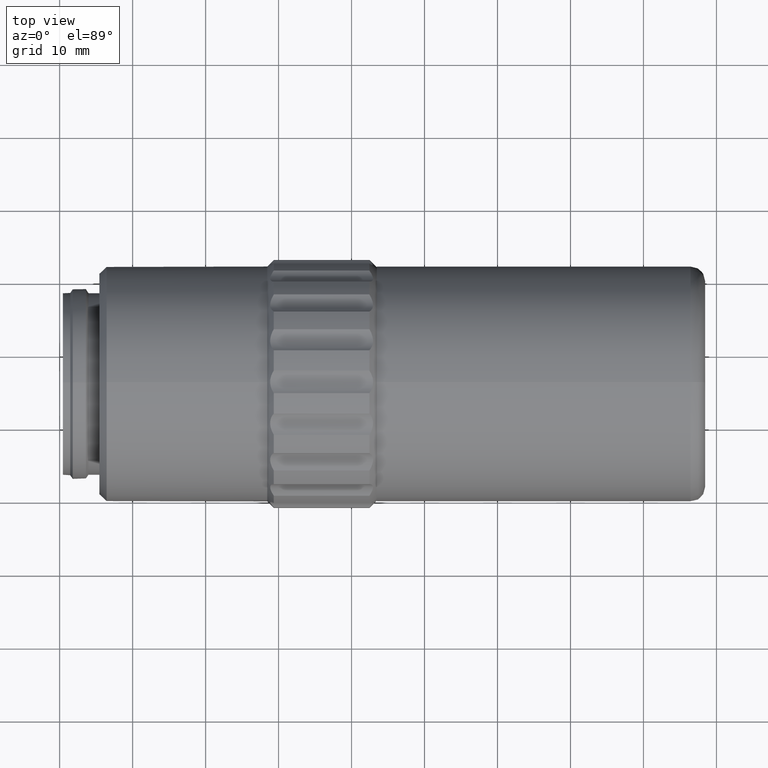
[diagram: clean part render]
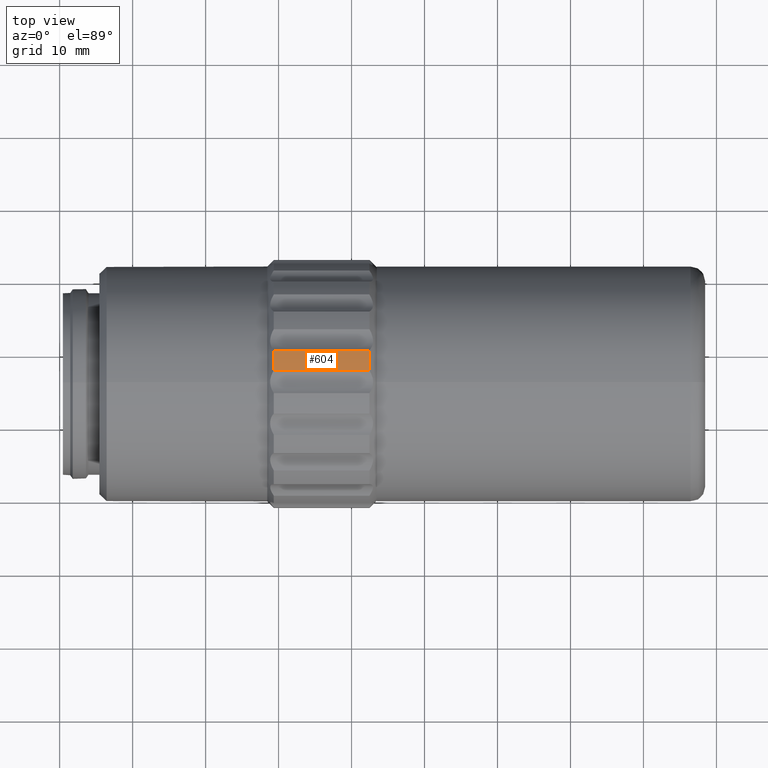
[diagram: same view with one face highlighted and labeled with its STEP entity id]
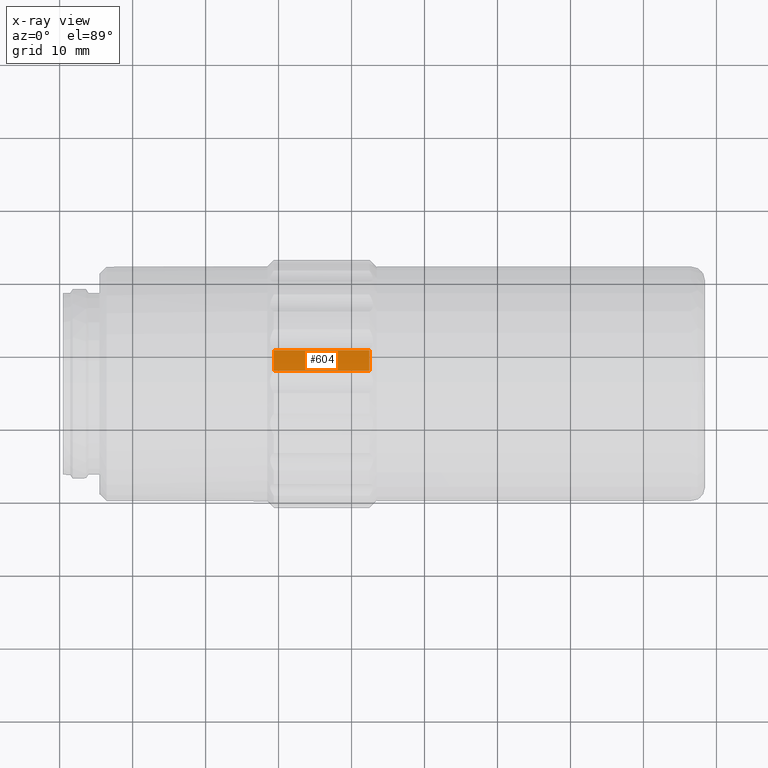
[diagram: x-ray of the same camera — body ghosted, the highlighted face saturated]
A machine part, top view. The second image highlights one B-rep face of the part: STEP entity #604.
The next image is the same camera in x-ray: the body ghosted, the highlighted face saturated — about 0% of this face is hidden behind the body in this view.
In plain terms, the highlighted cylindrical surface (partial cylindrical patch) has radius 17 mm, axis along (-1, 0, 0).
Its self-contained STEP definition (entity closure, byte-faithful):
#25 = EDGE_CURVE ( 'NONE', #606, #139, #341, .T. ) ;
#44 = CYLINDRICAL_SURFACE ( 'NONE', #2052, 17.00000000000000000 ) ;
#55 = DIRECTION ( 'NONE',  ( -1.000000000000000000, 0.000000000000000000, 0.000000000000000000 ) ) ;
#135 = AXIS2_PLACEMENT_3D ( 'NONE', #1088, #1962, #1625 ) ;
#139 = VERTEX_POINT ( 'NONE', #776 ) ;
#241 = EDGE_CURVE ( 'NONE', #251, #542, #1079, .T. ) ;
#251 = VERTEX_POINT ( 'NONE', #1067 ) ;
#341 = LINE ( 'NONE', #367, #1721 ) ;
#367 = CARTESIAN_POINT ( 'NONE',  ( 42.83704000000000178, 47.56772114077769942, 16.92948717948717530 ) ) ;
#391 = DIRECTION ( 'NONE',  ( 0.000000000000000000, 0.000000000000000000, 1.000000000000000000 ) ) ;
#507 = EDGE_CURVE ( 'NONE', #542, #606, #1469, .T. ) ;
#522 = DIRECTION ( 'NONE',  ( 0.000000000000000000, -1.591863895602246436E-14, 1.000000000000000000 ) ) ;
#532 = CARTESIAN_POINT ( 'NONE',  ( 36.23704000000000036, 50.35770948083630572, 16.43753695927281555 ) ) ;
#542 = VERTEX_POINT ( 'NONE', #532 ) ;
#604 = ADVANCED_FACE ( 'NONE', ( #2114 ), #44, .T. ) ;
#606 = VERTEX_POINT ( 'NONE', #1769 ) ;
#687 = VECTOR ( 'NONE', #55, 1000.000000000000000 ) ;
#776 = CARTESIAN_POINT ( 'NONE',  ( 49.33704000000000178, 47.56772114077768521, 16.92948717948718240 ) ) ;
#816 = ORIENTED_EDGE ( 'NONE', *, *, #1461, .F. ) ;
#916 = CARTESIAN_POINT ( 'NONE',  ( 42.83704000000000178, 50.35770948083630572, 16.43753695927281910 ) ) ;
#1067 = CARTESIAN_POINT ( 'NONE',  ( 49.33704000000000889, 50.35770948083630572, 16.43753695927281200 ) ) ;
#1079 = LINE ( 'NONE', #916, #687 ) ;
#1088 = CARTESIAN_POINT ( 'NONE',  ( 49.33704000000001599, 46.02096199999999726, 0.000000000000000000 ) ) ;
#1316 = CIRCLE ( 'NONE', #135, 16.99999999999998579 ) ;
#1370 = CARTESIAN_POINT ( 'NONE',  ( 36.23704000000000036, 46.02096199999999726, 0.000000000000000000 ) ) ;
#1411 = CARTESIAN_POINT ( 'NONE',  ( 42.83704000000000178, 46.02096199999999726, 0.000000000000000000 ) ) ;
#1461 = EDGE_CURVE ( 'NONE', #251, #139, #1316, .T. ) ;
#1465 = DIRECTION ( 'NONE',  ( -1.000000000000000000, 0.000000000000000000, 0.000000000000000000 ) ) ;
#1469 = CIRCLE ( 'NONE', #1723, 17.00000000000000000 ) ;
#1518 = DIRECTION ( 'NONE',  ( 1.000000000000000000, -0.000000000000000000, -0.000000000000000000 ) ) ;
#1528 = EDGE_LOOP ( 'NONE', ( #1913, #816, #1936, #1646 ) ) ;
#1625 = DIRECTION ( 'NONE',  ( 0.000000000000000000, 1.000000000000000000, 0.000000000000000000 ) ) ;
#1646 = ORIENTED_EDGE ( 'NONE', *, *, #507, .T. ) ;
#1721 = VECTOR ( 'NONE', #1740, 1000.000000000000000 ) ;
#1723 = AXIS2_PLACEMENT_3D ( 'NONE', #1370, #1518, #522 ) ;
#1740 = DIRECTION ( 'NONE',  ( 1.000000000000000000, -0.000000000000000000, -0.000000000000000000 ) ) ;
#1769 = CARTESIAN_POINT ( 'NONE',  ( 36.23704000000000747, 47.56772114077768521, 16.92948717948718595 ) ) ;
#1913 = ORIENTED_EDGE ( 'NONE', *, *, #25, .T. ) ;
#1936 = ORIENTED_EDGE ( 'NONE', *, *, #241, .T. ) ;
#1962 = DIRECTION ( 'NONE',  ( 1.000000000000000000, -0.000000000000000000, -0.000000000000000000 ) ) ;
#2052 = AXIS2_PLACEMENT_3D ( 'NONE', #1411, #1465, #391 ) ;
#2114 = FACE_OUTER_BOUND ( 'NONE', #1528, .T. ) ;